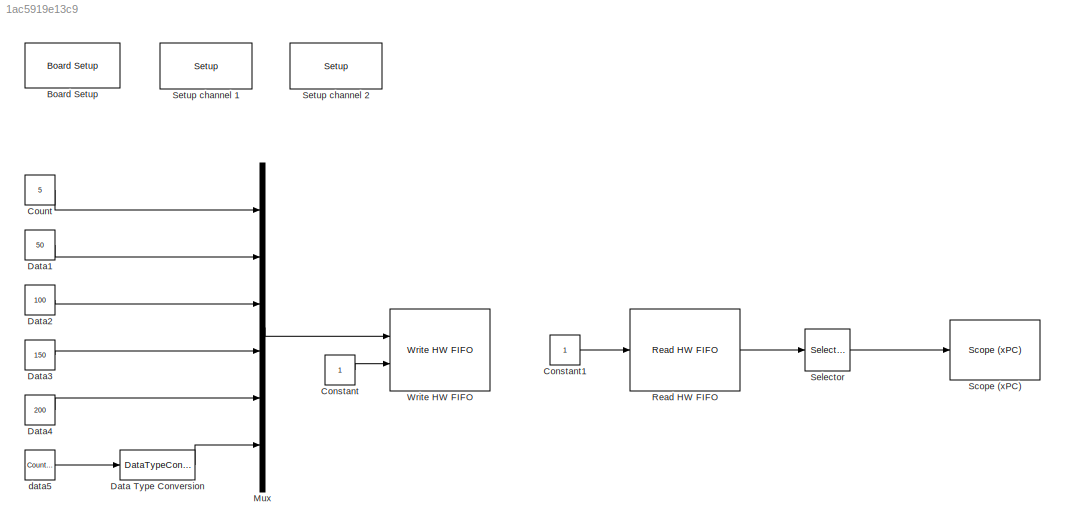
MODEL slx_1ac5919e13c9
KIND model
CONFIG InitFcn = Ts = 0.1;
BLOCK [Reference] Board Setup  REF=speedgoatlib/IO503/Speedgoat IO503  (lib defined in mdl_2b10c7445f81, mdl_649b3eec89a6, +4 more)
Internal blocks/Board Setup
  Ports = []
  SourceBlock = speedgoatlib/IO503/Speedgoat IO503\nInternal blocks/Board Setup
  SourceType = board_setup_XR17D15x
  irqnum = 10
  slot = -1
BLOCK [Constant] Constant
  OutDataTypeStr = Inherit: Inherit via back propagation
  SampleTime = Ts
BLOCK [Constant] Constant1
  OutDataTypeStr = Inherit: Inherit via back propagation
  SampleTime = Ts
BLOCK [Constant] Count
  OutDataTypeStr = Inherit: Inherit via back propagation
  SampleTime = Ts
  Value = 5
BLOCK [DataTypeConversion] Data Type Conversion
  RndMeth = Floor
  SaturateOnIntegerOverflow = off
BLOCK [Constant] Data1
  OutDataTypeStr = Inherit: Inherit via back propagation
  SampleTime = Ts
  Value = 50
BLOCK [Constant] Data2
  OutDataTypeStr = Inherit: Inherit via back propagation
  SampleTime = Ts
  Value = 100
BLOCK [Constant] Data3
  OutDataTypeStr = Inherit: Inherit via back propagation
  SampleTime = Ts
  Value = 150
BLOCK [Constant] Data4
  OutDataTypeStr = Inherit: Inherit via back propagation
  SampleTime = Ts
  Value = 200
BLOCK [Mux] Mux
  DisplayOption = bar
  Inputs = 6
  Ports = [6, 1]
BLOCK [Reference] Read HW FIFO  REF=speedgoatlib/IO503/Speedgoat IO503  (lib defined in mdl_2b10c7445f81, mdl_649b3eec89a6, +4 more)
Internal blocks/Read HW FIFO
  Ports = [1, 1]
  SourceBlock = speedgoatlib/IO503/Speedgoat IO503\nInternal blocks/Read HW FIFO
  SourceType = read_hw_fifo_XR17D15x
  flush = on
  port = 2
  slot = -1
BLOCK [Reference] Scope (xPC)  REF=xpclib/Misc./Scope (xPC) 
  Ports = [1]
  SourceBlock = xpclib/Misc./Scope (xPC)
  SourceType = xpcscopeblock
  autorestart = off
  autostart = on
  dynamicfilemode = off
  filename = data.dat
  formatstr = '%15.6f'
  grid = on
  interleave = 1
  maxwritefilesize = 512*1024^2
  mode = Lazy
  noprepostsamples = 0
  nosamples = 3
  scopeno = 2
  scopetype = Target
  triggerlevel = 0.0
  triggermode = FreeRun
  triggersample = 0
  triggerscope = 1
  triggersignal = 1
  triggerslope = Either
  trigsignalfromport = off
  viewmode = Numerical
  writesize = 512
  ylimits = [0,0]
BLOCK [Selector] Selector
  Indices = [1:6]
  InputPortWidth = 65
  Ports = [1, 1]
BLOCK [Reference] Setup channel 1   REF=speedgoatlib/IO503/Speedgoat IO503  (lib defined in mdl_2b10c7445f81, mdl_649b3eec89a6, +4 more)
Internal blocks/Setup
  Ports = []
  SourceBlock = speedgoatlib/IO503/Speedgoat IO503\nInternal blocks/Setup
  SourceType = setup_XR17D15x
  bauddivisor = 1
  baudrate = 115200
  ctsmode = none
  mode8x = 16x (standard)
  nstop = 1
  parity = None
  port = 1
  prescale = off
  rlevel = 1
  rs485delay = 0
  rs485mode = off
  slot = -1
  standard = on
  transceiver = RS232 (max 921.6kb/s)
  width = 8
  xoff = 19
  xon = 17
  xonoff = none
BLOCK [Reference] Setup channel 2  REF=speedgoatlib/IO503/Speedgoat IO503  (lib defined in mdl_2b10c7445f81, mdl_649b3eec89a6, +4 more)
Internal blocks/Setup
  Ports = []
  SourceBlock = speedgoatlib/IO503/Speedgoat IO503\nInternal blocks/Setup
  SourceType = setup_XR17D15x
  bauddivisor = 1
  baudrate = 115200
  ctsmode = none
  mode8x = 16x (standard)
  nstop = 1
  parity = None
  port = 2
  prescale = off
  rlevel = 1
  rs485delay = 0
  rs485mode = off
  slot = -1
  standard = on
  transceiver = RS232 (max 921.6kb/s)
  width = 8
  xoff = 19
  xon = 17
  xonoff = none
BLOCK [Reference] Write HW FIFO  REF=speedgoatlib/IO503/Speedgoat IO503  (lib defined in mdl_2b10c7445f81, mdl_649b3eec89a6, +4 more)
Internal blocks/Write HW FIFO
  Ports = [2]
  SourceBlock = speedgoatlib/IO503/Speedgoat IO503\nInternal blocks/Write HW FIFO
  SourceType = write_hw_fifo_XR17D15x
  port = 1
  slot = -1
BLOCK [Reference] data5  REF=simulink/Sources/Counter
Free-Running
  NumBits = 8
  Ports = [0, 1]
  SourceBlock = simulink/Sources/Counter\nFree-Running
  SourceType = Counter Free-Running
  tsamp = Ts
LINE Constant1:1 -> Read HW FIFO:1
LINE Constant:1 -> Write HW FIFO:2
LINE Count:1 -> Mux:1
LINE Data Type Conversion:1 -> Mux:6
LINE Data1:1 -> Mux:2
LINE Data2:1 -> Mux:3
LINE Data3:1 -> Mux:4
LINE Data4:1 -> Mux:5
LINE Mux:1 -> Write HW FIFO:1
LINE Read HW FIFO:1 -> Selector:1
LINE Selector:1 -> Scope (xPC):1
LINE data5:1 -> Data Type Conversion:1
